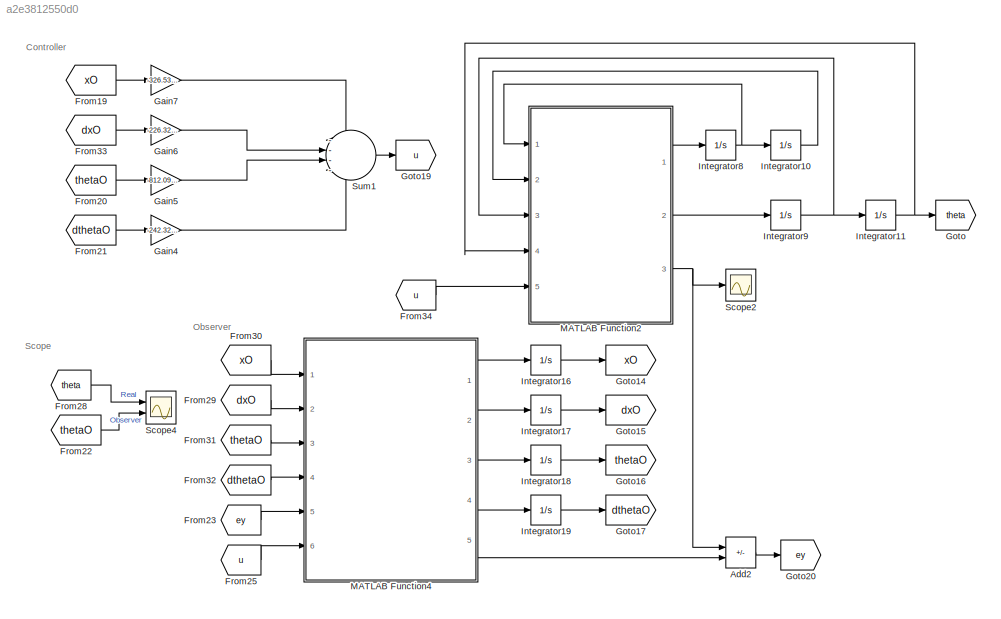
MODEL slx_a2e3812550d0
KIND model
CONFIG AbsTol = auto
CONFIG EnableMultiTasking = off
CONFIG FixedStep = auto
CONFIG MaxStep = 0.05
CONFIG MinStep = auto
CONFIG RelTol = 1e-3
CONFIG SampleTimeConstraint = Unconstrained
CONFIG SolverName = VariableStepAuto
CONFIG StartTime = 0.0
CONFIG StopTime = 5
BLOCK [Sum] Add2
  IconShape = rectangular
  Inputs = +-
  Ports = [2, 1]
BLOCK [From] From19
  GotoTag = xO
BLOCK [From] From20
  GotoTag = thetaO
BLOCK [From] From21
  GotoTag = dthetaO
BLOCK [From] From22
  GotoTag = thetaO
BLOCK [From] From23
  GotoTag = ey
BLOCK [From] From25
  GotoTag = u
BLOCK [From] From28
  GotoTag = theta
BLOCK [From] From29
  GotoTag = dxO
BLOCK [From] From30
  GotoTag = xO
BLOCK [From] From31
  GotoTag = thetaO
BLOCK [From] From32
  GotoTag = dthetaO
BLOCK [From] From33
  GotoTag = dxO
BLOCK [From] From34
  GotoTag = u
BLOCK [Gain] Gain4
  Gain = -242.3265
BLOCK [Gain] Gain5
  Gain = -812.0906
BLOCK [Gain] Gain6
  Gain = -226.3265
BLOCK [Gain] Gain7
  Gain = -326.5306
BLOCK [Goto] Goto
  GotoTag = theta
BLOCK [Goto] Goto14
  GotoTag = xO
BLOCK [Goto] Goto15
  GotoTag = dxO
BLOCK [Goto] Goto16
  GotoTag = thetaO
BLOCK [Goto] Goto17
  GotoTag = dthetaO
BLOCK [Goto] Goto19
  GotoTag = u
BLOCK [Goto] Goto20
  GotoTag = ey
BLOCK [Integrator] Integrator10
  Ports = [1, 1]
BLOCK [Integrator] Integrator11
  Ports = [1, 1]
BLOCK [Integrator] Integrator16
  Ports = [1, 1]
BLOCK [Integrator] Integrator17
  Ports = [1, 1]
BLOCK [Integrator] Integrator18
  Ports = [1, 1]
BLOCK [Integrator] Integrator19
  Ports = [1, 1]
BLOCK [Integrator] Integrator8
  Ports = [1, 1]
BLOCK [Integrator] Integrator9
  InitialCondition = 10*pi/180
  Ports = [1, 1]
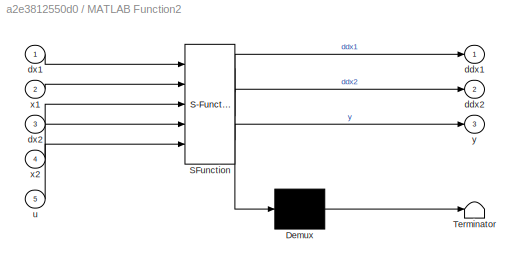
BLOCK [SubSystem] MATLAB Function2
  ErrorFcn = Stateflow.Translate.translate
  PermitHierarchicalResolution = ExplicitOnly
  Ports = [5, 3]
  RequestExecContextInheritance = off
  SFBlockType = MATLAB Function
  TreatAsAtomicUnit = on
BLOCK [Demux] MATLAB Function2/ Demux 
  Outputs = 1
  Ports = [1, 1]
BLOCK [S-Function] MATLAB Function2/ SFunction 
  EnableBusSupport = on
  FunctionName = sf_sfun
  PortCounts = [5 4]
  Ports = [5, 4]
  SFcnIsStateOwnerBlock = off
  SFunctionDeploymentMode = off
  Tag = Stateflow S-Function 3
BLOCK [Terminator] MATLAB Function2/ Terminator 
BLOCK [Outport] MATLAB Function2/ddx1
BLOCK [Outport] MATLAB Function2/ddx2
  Port = 2
BLOCK [Inport] MATLAB Function2/dx1
BLOCK [Inport] MATLAB Function2/dx2
  Port = 3
BLOCK [Inport] MATLAB Function2/u
  Port = 5
BLOCK [Inport] MATLAB Function2/x1
  Port = 2
BLOCK [Inport] MATLAB Function2/x2
  Port = 4
BLOCK [Outport] MATLAB Function2/y
  Port = 3
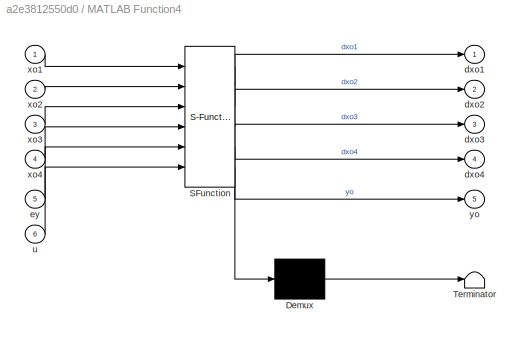
BLOCK [SubSystem] MATLAB Function4
  ErrorFcn = Stateflow.Translate.translate
  PermitHierarchicalResolution = ExplicitOnly
  Ports = [6, 5]
  RequestExecContextInheritance = off
  SFBlockType = MATLAB Function
  TreatAsAtomicUnit = on
BLOCK [Demux] MATLAB Function4/ Demux 
  Outputs = 1
  Ports = [1, 1]
BLOCK [S-Function] MATLAB Function4/ SFunction 
  EnableBusSupport = on
  FunctionName = sf_sfun
  PortCounts = [6 6]
  Ports = [6, 6]
  SFcnIsStateOwnerBlock = off
  SFunctionDeploymentMode = off
  Tag = Stateflow S-Function 5
BLOCK [Terminator] MATLAB Function4/ Terminator 
BLOCK [Outport] MATLAB Function4/dxo1
BLOCK [Outport] MATLAB Function4/dxo2
  Port = 2
BLOCK [Outport] MATLAB Function4/dxo3
  Port = 3
BLOCK [Outport] MATLAB Function4/dxo4
  Port = 4
BLOCK [Inport] MATLAB Function4/ey
  Port = 5
BLOCK [Inport] MATLAB Function4/u
  Port = 6
BLOCK [Inport] MATLAB Function4/xo1
BLOCK [Inport] MATLAB Function4/xo2
  Port = 2
BLOCK [Inport] MATLAB Function4/xo3
  Port = 3
BLOCK [Inport] MATLAB Function4/xo4
  Port = 4
BLOCK [Outport] MATLAB Function4/yo
  Port = 5
BLOCK [Scope] Scope2
  Floating = off
  NumInputPorts = 1
  Ports = [1]
  ScopeSpecificationString = Simulink.scopes.TimeScopeBlockCfg('CurrentConfiguration', extmgr.ConfigurationSet(extmgr.Configuration('Core','General UI',true),extmgr.Configuration('Core','Source UI',true),extmgr.Configuration('Sources','WiredSimulink',true,'DataLoggingVariableName','ScopeData1'),extmgr.Configuration('Visuals','Time Domain',true,'SerializedDisplays',{struct('MinYLimReal','-0.15851','MaxYLimReal','0.4446','YLabe...<+1407ch>
BLOCK [Scope] Scope4
  Floating = off
  NumInputPorts = 2
  Ports = [2]
  ScopeSpecificationString = Simulink.scopes.TimeScopeBlockCfg('CurrentConfiguration', extmgr.ConfigurationSet(extmgr.Configuration('Core','General UI',true),extmgr.Configuration('Core','Source UI',true),extmgr.Configuration('Sources','WiredSimulink',true,'DataLoggingVariableName','ScopeData3'),extmgr.Configuration('Visuals','Time Domain',true,'SerializedDisplays',{struct('MinYLimReal','-0.19305','MaxYLimReal','0.137','YLabel...<+1665ch>
BLOCK [Sum] Sum1
  Inputs = ----
  Ports = [4, 1]
ANNOTATION (root): Controller
ANNOTATION (root): Observer
ANNOTATION (root): Scope
LINE Add2:1 -> Goto20:1
LINE From19:1 -> Gain7:1
LINE From20:1 -> Gain5:1
LINE From21:1 -> Gain4:1
LINE From22:1 -> Scope4:2
LINE From23:1 -> MATLAB Function4:5
LINE From25:1 -> MATLAB Function4:6
LINE From28:1 -> Scope4:1
LINE From29:1 -> MATLAB Function4:2
LINE From30:1 -> MATLAB Function4:1
LINE From31:1 -> MATLAB Function4:3
LINE From32:1 -> MATLAB Function4:4
LINE From33:1 -> Gain6:1
LINE From34:1 -> MATLAB Function2:5
LINE Gain4:1 -> Sum1:4
LINE Gain5:1 -> Sum1:3
LINE Gain6:1 -> Sum1:2
LINE Gain7:1 -> Sum1:1
LINE Integrator10:1 -> MATLAB Function2:2
NET Integrator11:1 -> Goto:1, MATLAB Function2:4
LINE Integrator16:1 -> Goto14:1
LINE Integrator17:1 -> Goto15:1
LINE Integrator18:1 -> Goto16:1
LINE Integrator19:1 -> Goto17:1
NET Integrator8:1 -> Integrator10:1, MATLAB Function2:1
NET Integrator9:1 -> Integrator11:1, MATLAB Function2:3
LINE MATLAB Function2:1 -> Integrator8:1
LINE MATLAB Function2:2 -> Integrator9:1
NET MATLAB Function2:3 -> Add2:1, Scope2:1
LINE MATLAB Function4:1 -> Integrator16:1
LINE MATLAB Function4:2 -> Integrator17:1
LINE MATLAB Function4:3 -> Integrator18:1
LINE MATLAB Function4:4 -> Integrator19:1
LINE MATLAB Function4:5 -> Add2:2
LINE Sum1:1 -> Goto19:1
note: NET lines group one-source signal fan-out (src -> all destinations, sorted); 1:1 wires keep LINE
CHART MATLAB Function2 states=1 transitions=1
  STATE_LABEL 'eML_blk_kernel()'
  STATE_LABEL 'SCRIPT:\nfunction [ddx1,ddx2,y] = Nonlinear(dx1,x1,dx2,x2,u)\n\nM = 1;\nm = 0.1;\nl = 1;\ng = 9.8;\nk = 1;\nR = 100;\nr = 0.02;\nM = [M+m m*l*cos(x2);cos(x2) l];\nf = k/(R*r)*(u-k*dx1/r);\nF = [f+m*l*dx2^2*sin(x2);g*sin(x2)];\nddx = inv(M)*F;\nddx1 = ddx(1);\nddx2 = ddx(2);\ny = x1;'
CHART MATLAB Function4 states=1 transitions=1
  STATE_LABEL 'eML_blk_kernel()'
  STATE_LABEL 'SCRIPT:\nfunction [dxo1,dxo2,dxo3,dxo4,yo] = obs(xo1,xo2,xo3,xo4,ey,u)\n\n\nm = 0.1 ;\nM = 1.0 ;\nL = 1.0 ;\ng = 10 ;\nk = 1 ;\nR = 100 ;\nr = 0.02 ;\n\nA = [ 0 ,           1           ,         0        , 0 ;\n      0 ,   (-k^2/(M*R*r^2))    ,       -m*g/M     , 0 ;\n      0 ,            0          ,         0        , 1 ;\n      0 ,   (k^2/(M*R*r^2*L))   ,  ((M+m)*g/(M*L)) , 0 ] ;\n\nB = [0 ; k/(M*R*r) ; 0 ;  -k...<+215ch>'
CHART  states=0 transitions=0
CHART  states=0 transitions=0
